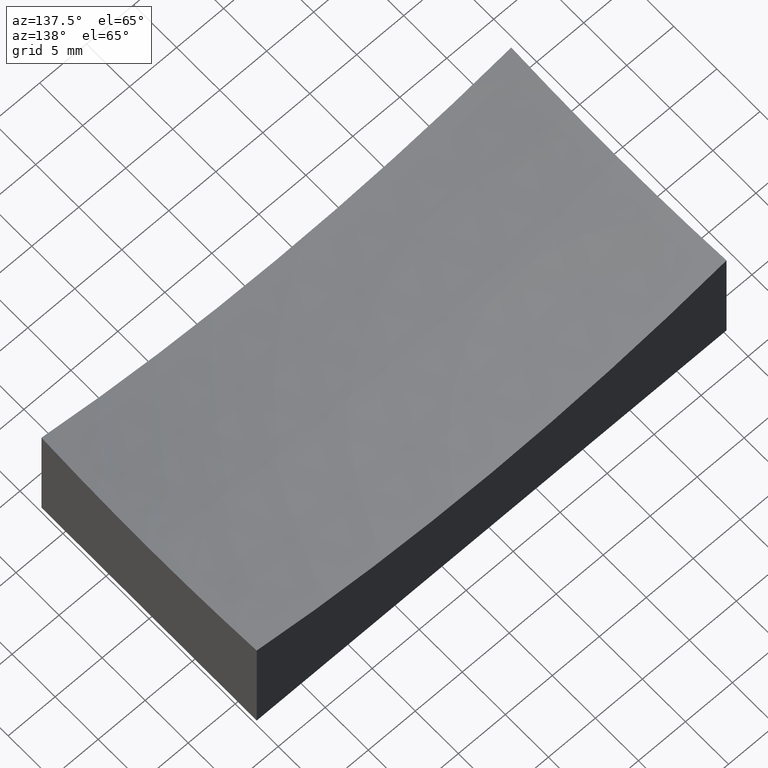
[diagram: clean part render]
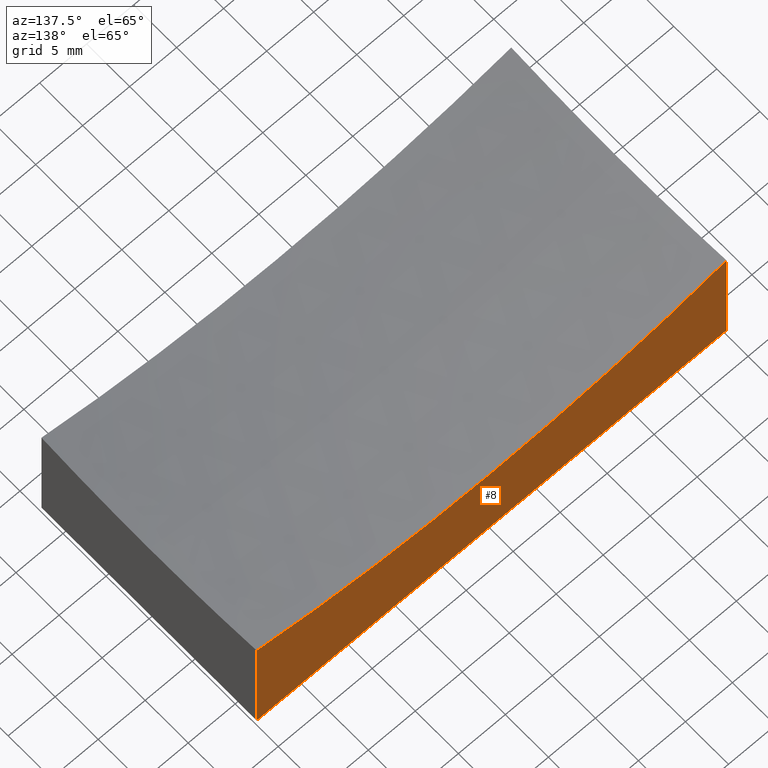
[diagram: same view with one face highlighted and labeled with its STEP entity id]
A machine part, auxiliary view. The second image highlights one B-rep face of the part: STEP entity #8.
In plain terms, the highlighted planar face has unit normal (0, -1, 0).
Its self-contained STEP definition (entity closure, byte-faithful):
#8 = ADVANCED_FACE ( 'NONE', ( #187 ), #34, .F. ) ;
#16 = CARTESIAN_POINT ( 'NONE',  ( 25.00000000000000355, 12.50000000000000000, 15.00000000000000000 ) ) ;
#21 = CARTESIAN_POINT ( 'NONE',  ( -25.00000000000000000, 12.50000000000000000, 15.00000000000000000 ) ) ;
#25 = CARTESIAN_POINT ( 'NONE',  ( 25.00000000000000355, 12.50000000000000000, 12.98567815164238048 ) ) ;
#27 = EDGE_CURVE ( 'NONE', #189, #130, #96, .T. ) ;
#34 = PLANE ( 'NONE',  #92 ) ;
#61 = DIRECTION ( 'NONE',  ( 0.000000000000000000, 0.000000000000000000, -1.000000000000000000 ) ) ;
#63 = DIRECTION ( 'NONE',  ( -1.000000000000000000, -0.000000000000000000, -0.000000000000000000 ) ) ;
#67 = VECTOR ( 'NONE', #195, 1000.000000000000000 ) ;
#76 = CARTESIAN_POINT ( 'NONE',  ( -25.00000000000000000, 12.50000000000000000, 12.98567815164238048 ) ) ;
#78 = AXIS2_PLACEMENT_3D ( 'NONE', #201, #123, #61 ) ;
#87 = EDGE_LOOP ( 'NONE', ( #146, #166, #150, #226 ) ) ;
#92 = AXIS2_PLACEMENT_3D ( 'NONE', #133, #154, #191 ) ;
#96 = LINE ( 'NONE', #16, #222 ) ;
#106 = LINE ( 'NONE', #181, #175 ) ;
#109 = EDGE_CURVE ( 'NONE', #145, #110, #233, .T. ) ;
#110 = VERTEX_POINT ( 'NONE', #248 ) ;
#123 = DIRECTION ( 'NONE',  ( -0.000000000000000000, 1.000000000000000000, -0.000000000000000000 ) ) ;
#130 = VERTEX_POINT ( 'NONE', #161 ) ;
#133 = CARTESIAN_POINT ( 'NONE',  ( -25.00000000000000000, 12.50000000000000000, 15.00000000000000000 ) ) ;
#145 = VERTEX_POINT ( 'NONE', #76 ) ;
#146 = ORIENTED_EDGE ( 'NONE', *, *, #163, .F. ) ;
#150 = ORIENTED_EDGE ( 'NONE', *, *, #174, .T. ) ;
#154 = DIRECTION ( 'NONE',  ( 0.000000000000000000, -1.000000000000000000, 0.000000000000000000 ) ) ;
#161 = CARTESIAN_POINT ( 'NONE',  ( 25.00000000000000355, 12.50000000000000000, 0.000000000000000000 ) ) ;
#163 = EDGE_CURVE ( 'NONE', #189, #145, #192, .T. ) ;
#166 = ORIENTED_EDGE ( 'NONE', *, *, #27, .T. ) ;
#174 = EDGE_CURVE ( 'NONE', #130, #110, #106, .T. ) ;
#175 = VECTOR ( 'NONE', #63, 1000.000000000000000 ) ;
#181 = CARTESIAN_POINT ( 'NONE',  ( -25.00000000000000000, 12.50000000000000000, 0.000000000000000000 ) ) ;
#187 = FACE_OUTER_BOUND ( 'NONE', #87, .T. ) ;
#189 = VERTEX_POINT ( 'NONE', #25 ) ;
#191 = DIRECTION ( 'NONE',  ( 0.000000000000000000, -0.000000000000000000, -1.000000000000000000 ) ) ;
#192 = CIRCLE ( 'NONE', #78, 99.21567416492216296 ) ;
#195 = DIRECTION ( 'NONE',  ( -0.000000000000000000, -0.000000000000000000, -1.000000000000000000 ) ) ;
#201 = CARTESIAN_POINT ( 'NONE',  ( 1.224646799147353375E-14, 12.50000000000000000, 109.0000000000000000 ) ) ;
#222 = VECTOR ( 'NONE', #251, 1000.000000000000000 ) ;
#226 = ORIENTED_EDGE ( 'NONE', *, *, #109, .F. ) ;
#233 = LINE ( 'NONE', #21, #67 ) ;
#248 = CARTESIAN_POINT ( 'NONE',  ( -25.00000000000000000, 12.50000000000000000, 0.000000000000000000 ) ) ;
#251 = DIRECTION ( 'NONE',  ( -0.000000000000000000, -0.000000000000000000, -1.000000000000000000 ) ) ;